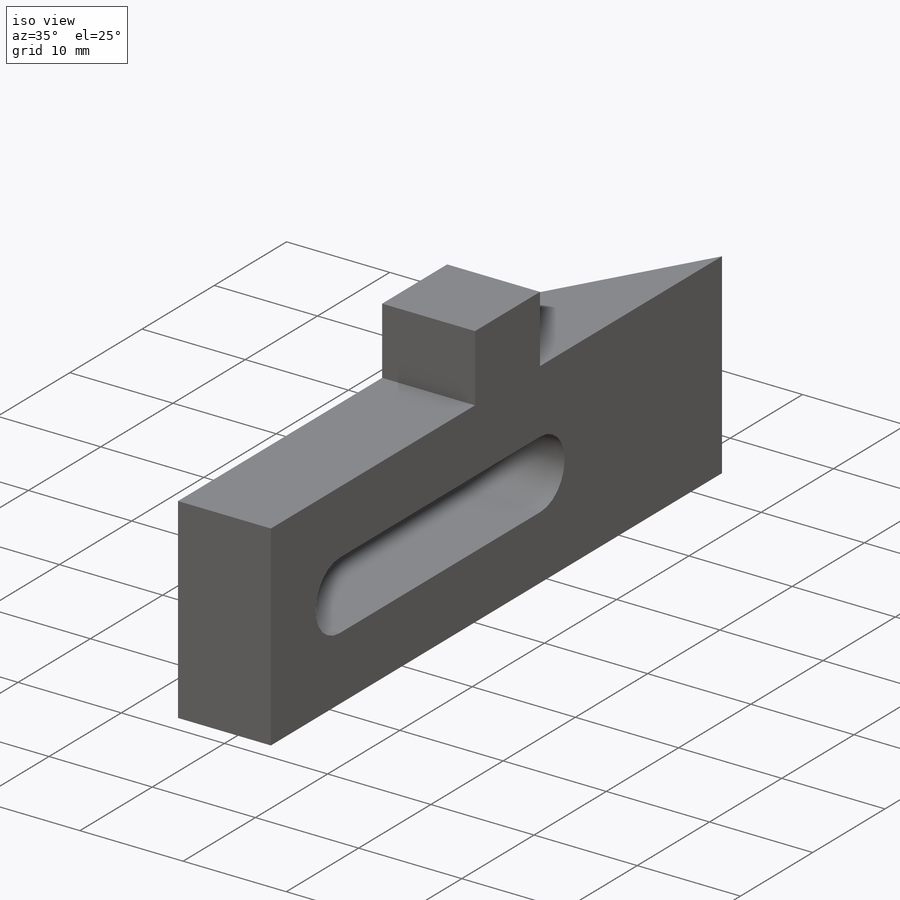
[diagram: iso view]
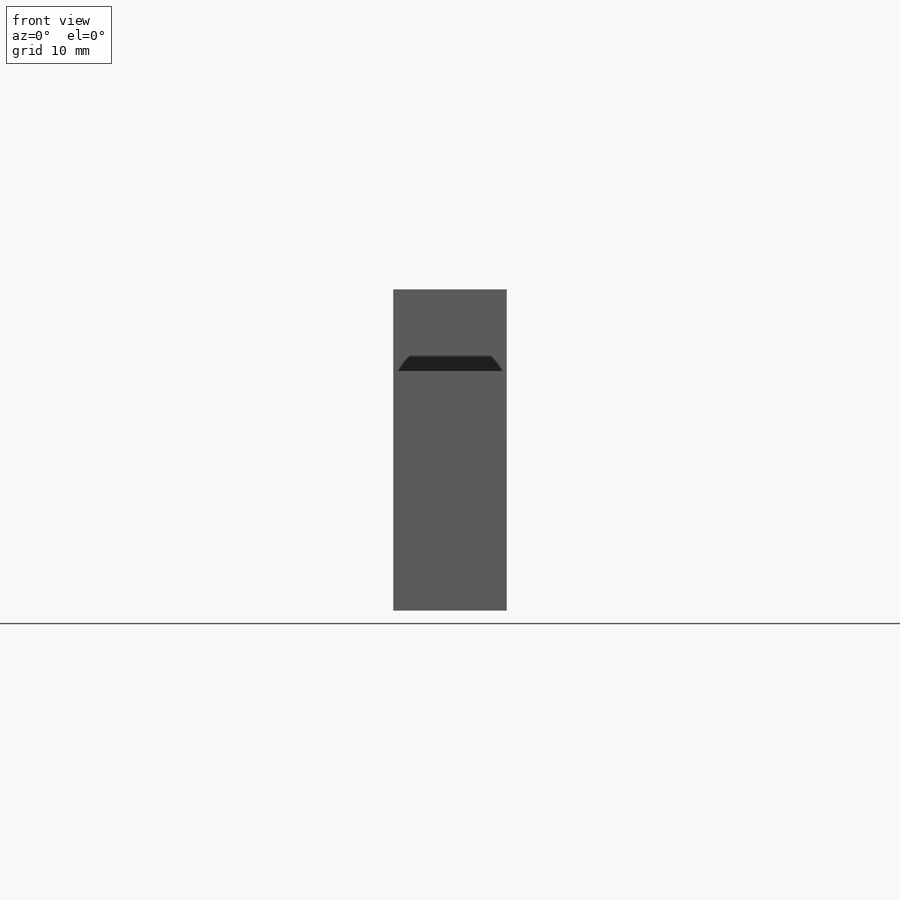
[diagram: front view]
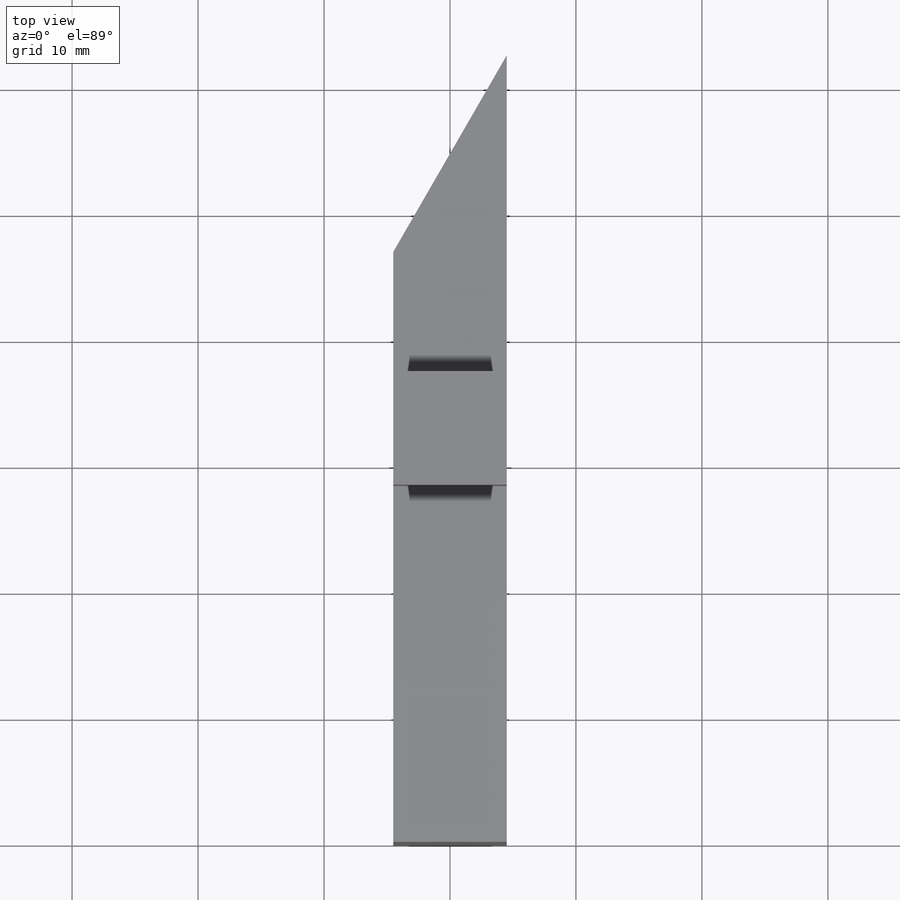
[diagram: top view]
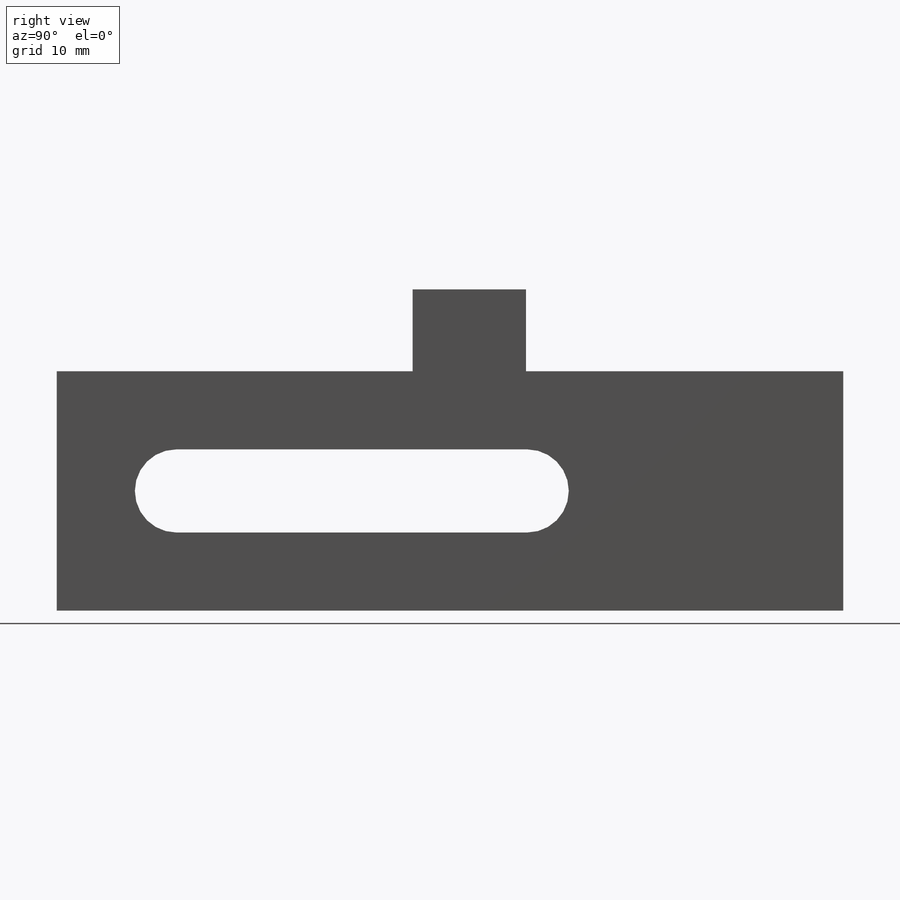
[diagram: right view]
SOLIDWORKS PART (.sldprt)
format: sldprt  version: not decoded by parser v0  size: 156,160 bytes
history: native  units: mm
features: sketch x3, extrude x2, material x1, cut_extrude x1 (+13 scaffold rows collapsed)
feature tree (20):
  scaffold x13  (default folders/planes/origin — collapsed)
  material  "Material <not specified>"
  sketch  "Sketch1"  dims[D1=75.0mm D2=75.0mm D3=75.0mm D4=13.0mm D5=9.0mm D6=20.0mm]
  extrude  "Boss-Extrude1"  Depth=19mm
  sketch  "Sketch3"  dims[D4=3.3mm D1=9.5mm D2=9.5mm D3=9.5mm]
  cut_extrude  "Cut-Extrude1"  [1 undecoded]
  sketch  "Sketch4"  dims[D1=9.0mm D2=28.25mm]
  extrude  "Boss-Extrude3"  Depth=6.5mm
decode coverage: 5 of 6 modeling features carry decoded parameters
note: 1 parameter value undecoded
note: suppression state not decoded; provenance and decode notes live in map.json
